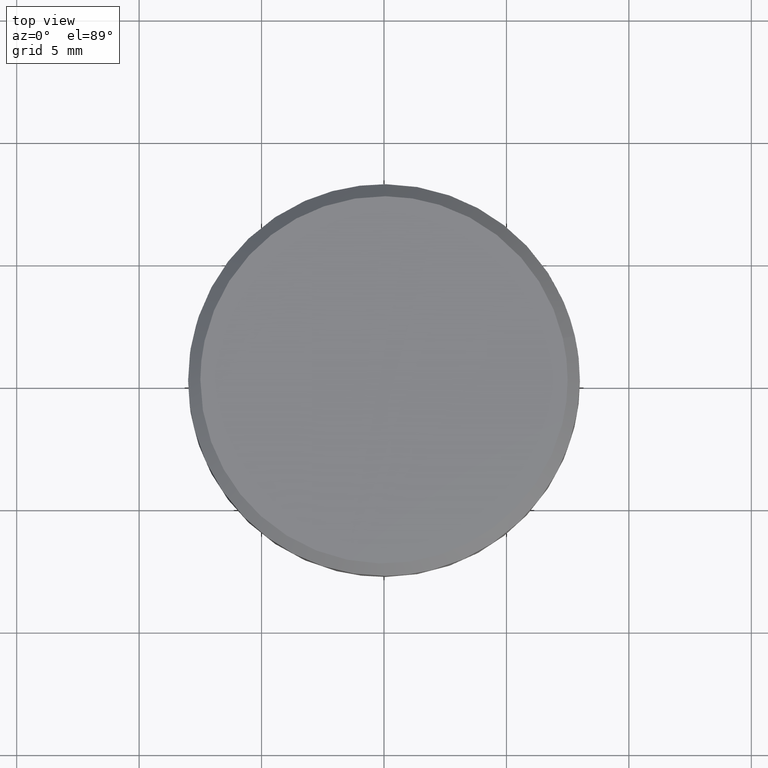
[diagram: clean part render]
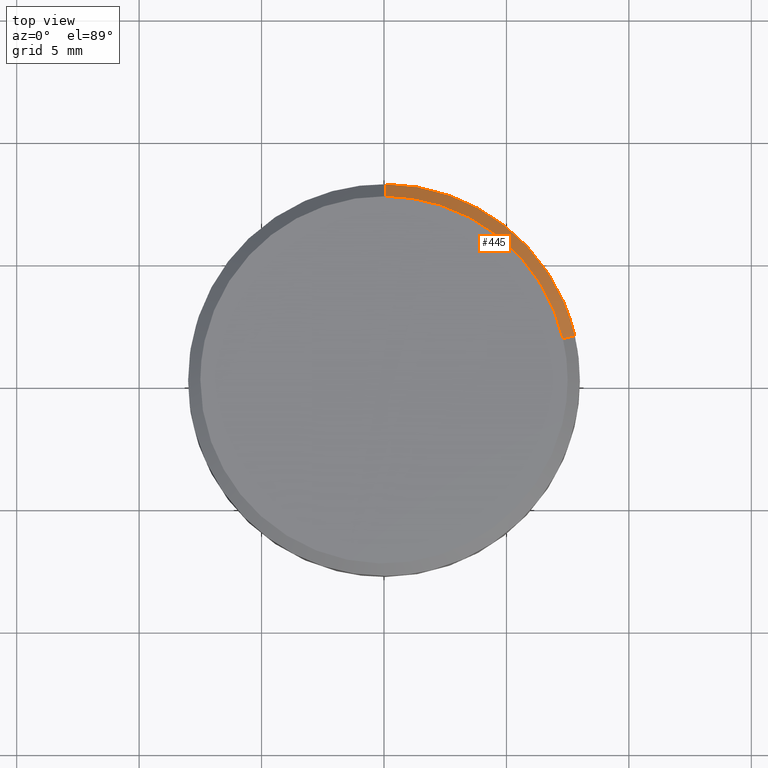
[diagram: same view with one face highlighted and labeled with its STEP entity id]
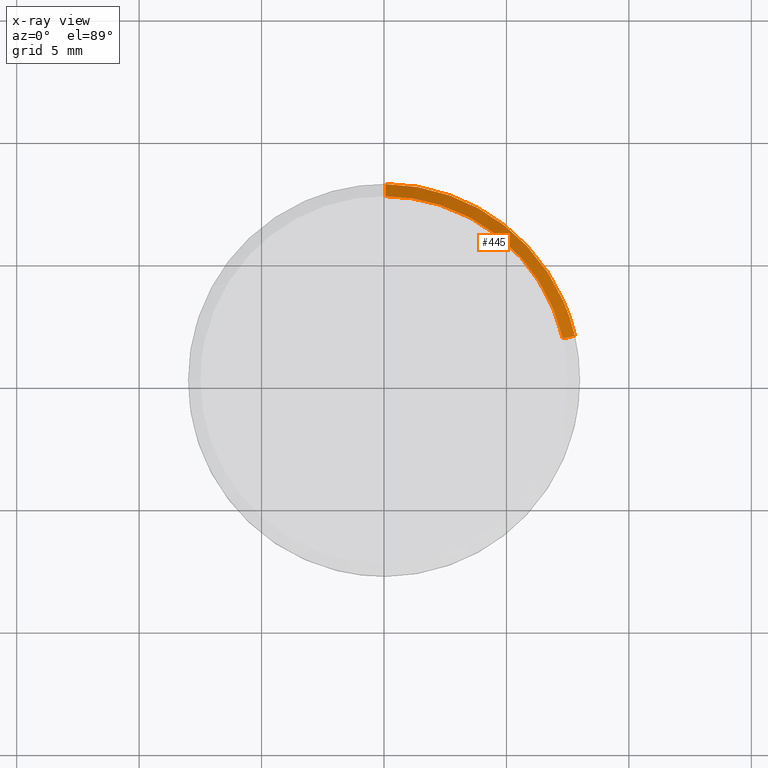
[diagram: x-ray of the same camera — body ghosted, the highlighted face saturated]
A machine part, top view. The second image highlights one B-rep face of the part: STEP entity #445.
The next image is the same camera in x-ray: the body ghosted, the highlighted face saturated — about 0% of this face is hidden behind the body in this view.
In plain terms, the highlighted face is a freeform B-spline surface patch.
Its self-contained STEP definition (entity closure, byte-faithful):
#256=CARTESIAN_POINT('',(7.793745225428513,1.804864360863222,8.999999999999780));
#257=VERTEX_POINT('',#256);
#273=CARTESIAN_POINT('',(7.306636148837367,1.692060338325562,9.499999999997908));
#274=VERTEX_POINT('',#273);
#275=CARTESIAN_POINT('',(7.306636148837367,1.692060338325562,9.499999999997908));
#276=CARTESIAN_POINT('',(7.793745225428513,1.804864360863222,8.999999999999780));
#277=QUASI_UNIFORM_CURVE('',1,(#275,#276),.UNSPECIFIED.,.F.,.U.);
#278=EDGE_CURVE('',#274,#257,#277,.T.);
#312=CARTESIAN_POINT('',(0.065449016255933,7.499714422983592,9.499999999997533));
#313=VERTEX_POINT('',#312);
#329=CARTESIAN_POINT('',(0.069812284012937,7.999695384516684,8.999999999996485));
#330=VERTEX_POINT('',#329);
#331=CARTESIAN_POINT('',(0.065449016255933,7.499714422983592,9.499999999997533));
#332=CARTESIAN_POINT('',(0.069812284012937,7.999695384516684,8.999999999996485));
#333=QUASI_UNIFORM_CURVE('',1,(#331,#332),.UNSPECIFIED.,.F.,.U.);
#334=EDGE_CURVE('',#313,#330,#333,.T.);
#401=CARTESIAN_POINT('',(0.065339934544074,7.487214898942977,9.512500000000001));
#402=CARTESIAN_POINT('',(5.963692058399673,7.435740759774748,9.512500000000001));
#403=CARTESIAN_POINT('',(7.294458421924698,1.689240237743507,9.512499999999999));
#404=CARTESIAN_POINT('',(0.069924092723065,8.012507396652685,8.987187499999997));
#405=CARTESIAN_POINT('',(6.382096330109651,7.957421904064514,8.987187499999997));
#406=CARTESIAN_POINT('',(7.806227395516387,1.807754963939131,8.987187499999997));
#414=(BOUNDED_SURFACE()B_SPLINE_SURFACE(2,1,((#401,#404),(#402,#405),(#403,#406)),.UNSPECIFIED.,.F.,.F.,.U.)B_SPLINE_SURFACE_WITH_KNOTS((3,3),(2,2),(0.0,11.103124578239370),(0.0,1.0),.UNSPECIFIED.)GEOMETRIC_REPRESENTATION_ITEM()RATIONAL_B_SPLINE_SURFACE(((1.0,1.0),(0.753969696196700,0.753969696196700),(0.921270302782944,0.921270302782944)))REPRESENTATION_ITEM('')SURFACE());
#415=CARTESIAN_POINT('',(0.069812284012937,7.999695384516684,8.999999999996485));
#416=CARTESIAN_POINT('',(6.371891347878983,7.944697973675043,9.0));
#417=CARTESIAN_POINT('',(7.793745225428513,1.804864360863222,8.999999999999780));
#425=(BOUNDED_CURVE()B_SPLINE_CURVE(2,(#415,#416,#417),.UNSPECIFIED.,.F.,.U.)B_SPLINE_CURVE_WITH_KNOTS((3,3),(0.751539894336128,0.961422971784527),.UNSPECIFIED.)CURVE()GEOMETRIC_REPRESENTATION_ITEM()RATIONAL_B_SPLINE_CURVE((0.996414028097765,0.753549905436829,0.923556557442651))REPRESENTATION_ITEM(''));
#426=EDGE_CURVE('',#330,#257,#425,.T.);
#427=ORIENTED_EDGE('',*,*,#426,.F.);
#428=ORIENTED_EDGE('',*,*,#334,.F.);
#429=CARTESIAN_POINT('',(7.306636148837367,1.692060338325561,9.499999999997908));
#430=CARTESIAN_POINT('',(5.973648138607844,7.448154350330355,9.500000000000002));
#431=CARTESIAN_POINT('',(0.065449016255933,7.499714422983592,9.499999999997533));
#439=(BOUNDED_CURVE()B_SPLINE_CURVE(2,(#429,#430,#431),.UNSPECIFIED.,.F.,.U.)B_SPLINE_CURVE_WITH_KNOTS((3,3),(0.538577028216184,0.748460105664162),.UNSPECIFIED.)CURVE()GEOMETRIC_REPRESENTATION_ITEM()RATIONAL_B_SPLINE_CURVE((0.923556557441500,0.753549905437415,0.996414028098437))REPRESENTATION_ITEM(''));
#440=EDGE_CURVE('',#274,#313,#439,.T.);
#441=ORIENTED_EDGE('',*,*,#440,.F.);
#442=ORIENTED_EDGE('',*,*,#278,.T.);
#443=EDGE_LOOP('',(#427,#428,#441,#442));
#444=FACE_OUTER_BOUND('',#443,.T.);
#445=ADVANCED_FACE('',(#444),#414,.T.);